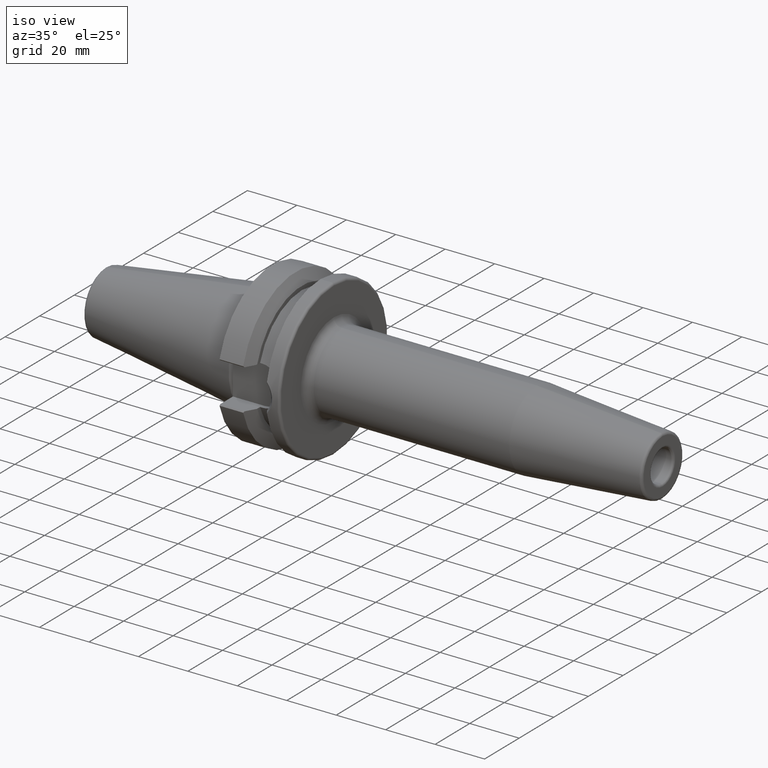
[diagram: clean part render]
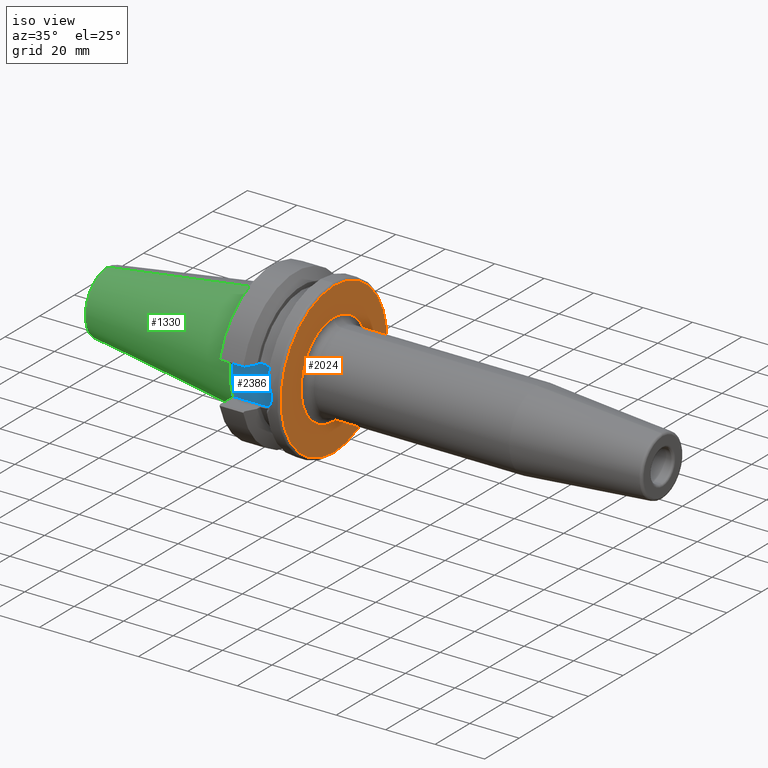
[diagram: same view with three faces highlighted in distinct colors, each labeled with its STEP entity id]
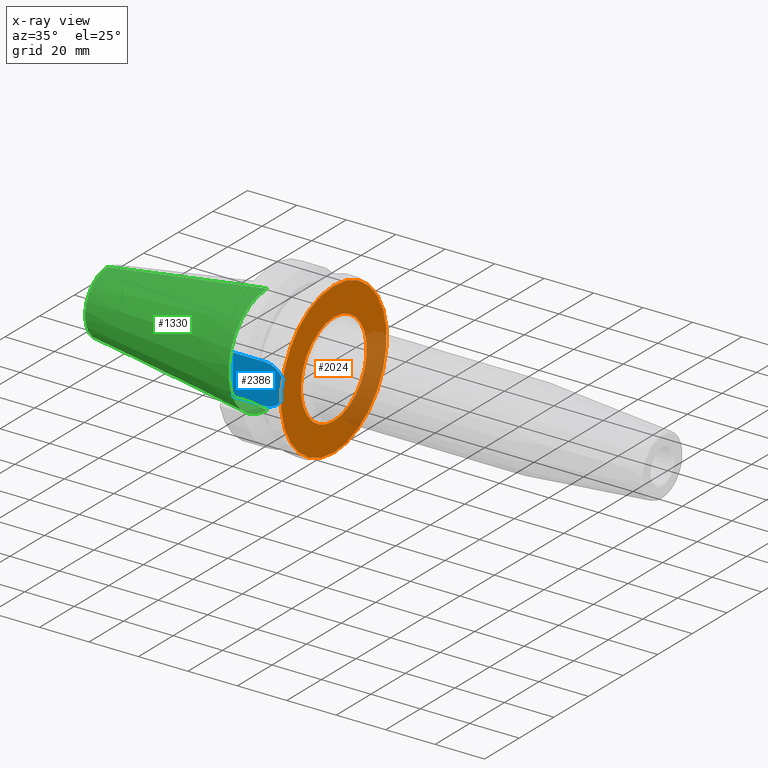
[diagram: x-ray of the same camera — body ghosted, the three highlighted faces saturated]
A machine part, iso view with three faces highlighted in distinct colors.
The next image is the same camera in x-ray (body ghosted, the three faces saturated) — at least one of them is partly hidden behind the body in this view.
Their STEP definitions:

[orange] entity #2024 — the highlighted planar face has unit normal (-1, 0, 0).
#491=CARTESIAN_POINT('',(2.7E1,0.E0,0.E0));
#492=DIRECTION('',(-1.E0,0.E0,0.E0));
#493=DIRECTION('',(0.E0,0.E0,-1.E0));
#494=AXIS2_PLACEMENT_3D('',#491,#492,#493);
#496=CARTESIAN_POINT('',(2.7E1,0.E0,0.E0));
#497=DIRECTION('',(-1.E0,0.E0,0.E0));
#498=DIRECTION('',(0.E0,0.E0,1.E0));
#499=AXIS2_PLACEMENT_3D('',#496,#497,#498);
#501=CARTESIAN_POINT('',(2.7E1,0.E0,0.E0));
#502=DIRECTION('',(1.E0,0.E0,0.E0));
#503=DIRECTION('',(0.E0,0.E0,-1.E0));
#504=AXIS2_PLACEMENT_3D('',#501,#502,#503);
#506=CARTESIAN_POINT('',(2.7E1,0.E0,0.E0));
#507=DIRECTION('',(1.E0,0.E0,0.E0));
#508=DIRECTION('',(0.E0,0.E0,1.E0));
#509=AXIS2_PLACEMENT_3D('',#506,#507,#508);
#1066=CARTESIAN_POINT('',(2.7E1,0.E0,-3.05E1));
#1067=CARTESIAN_POINT('',(2.7E1,0.E0,3.05E1));
#1068=VERTEX_POINT('',#1066);
#1069=VERTEX_POINT('',#1067);
#1265=CARTESIAN_POINT('',(2.7E1,0.E0,-1.9E1));
#1266=CARTESIAN_POINT('',(2.7E1,0.E0,1.9E1));
#1267=VERTEX_POINT('',#1265);
#1268=VERTEX_POINT('',#1266);
#2008=CARTESIAN_POINT('',(2.7E1,0.E0,0.E0));
#2009=DIRECTION('',(-1.E0,0.E0,0.E0));
#2010=DIRECTION('',(0.E0,0.E0,-1.E0));
#2011=AXIS2_PLACEMENT_3D('',#2008,#2009,#2010);
#2012=PLANE('',#2011);
#2014=ORIENTED_EDGE('',*,*,#2013,.T.);
#2016=ORIENTED_EDGE('',*,*,#2015,.T.);
#2017=EDGE_LOOP('',(#2014,#2016));
#2018=FACE_OUTER_BOUND('',#2017,.F.);
#2020=ORIENTED_EDGE('',*,*,#2019,.T.);
#2021=ORIENTED_EDGE('',*,*,#1998,.T.);
#2022=EDGE_LOOP('',(#2020,#2021));
#2023=FACE_BOUND('',#2022,.F.);
#2024=ADVANCED_FACE('',(#2018,#2023),#2012,.F.);
#495=CIRCLE('',#494,3.05E1);
#500=CIRCLE('',#499,3.05E1);
#505=CIRCLE('',#504,1.9E1);
#510=CIRCLE('',#509,1.9E1);
#1998=EDGE_CURVE('',#1268,#1267,#510,.T.);
#2013=EDGE_CURVE('',#1068,#1069,#495,.T.);
#2015=EDGE_CURVE('',#1069,#1068,#500,.T.);
#2019=EDGE_CURVE('',#1267,#1268,#505,.T.);

[blue] entity #2386 — the highlighted planar face has unit normal (0, 1, 0).
#856=CARTESIAN_POINT('',(1.495E1,-2.26E1,0.E0));
#857=DIRECTION('',(0.E0,1.E0,0.E0));
#858=DIRECTION('',(0.E0,0.E0,1.E0));
#859=AXIS2_PLACEMENT_3D('',#856,#857,#858);
#861=DIRECTION('',(-1.E0,0.E0,0.E0));
#862=VECTOR('',#861,1.295E1);
#863=CARTESIAN_POINT('',(1.495E1,-2.26E1,-8.05E0));
#864=LINE('',#863,#862);
#865=DIRECTION('',(1.E0,0.E0,0.E0));
#866=VECTOR('',#865,1.295E1);
#867=CARTESIAN_POINT('',(2.E0,-2.26E1,8.05E0));
#868=LINE('',#867,#866);
#879=DIRECTION('',(0.E0,0.E0,-1.E0));
#880=VECTOR('',#879,1.61E1);
#881=CARTESIAN_POINT('',(2.E0,-2.26E1,8.05E0));
#882=LINE('',#881,#880);
#1166=CARTESIAN_POINT('',(2.E0,-2.26E1,8.05E0));
#1167=CARTESIAN_POINT('',(2.E0,-2.26E1,-8.05E0));
#1168=VERTEX_POINT('',#1166);
#1169=VERTEX_POINT('',#1167);
#1193=CARTESIAN_POINT('',(1.495E1,-2.26E1,-8.05E0));
#1195=VERTEX_POINT('',#1193);
#1197=CARTESIAN_POINT('',(1.495E1,-2.26E1,8.05E0));
#1198=VERTEX_POINT('',#1197);
#2374=CARTESIAN_POINT('',(0.E0,-2.26E1,0.E0));
#2375=DIRECTION('',(0.E0,1.E0,0.E0));
#2376=DIRECTION('',(1.E0,0.E0,0.E0));
#2377=AXIS2_PLACEMENT_3D('',#2374,#2375,#2376);
#2378=PLANE('',#2377);
#2379=ORIENTED_EDGE('',*,*,#2121,.T.);
#2380=ORIENTED_EDGE('',*,*,#2155,.T.);
#2382=ORIENTED_EDGE('',*,*,#2381,.F.);
#2383=ORIENTED_EDGE('',*,*,#2361,.T.);
#2384=EDGE_LOOP('',(#2379,#2380,#2382,#2383));
#2385=FACE_OUTER_BOUND('',#2384,.F.);
#2386=ADVANCED_FACE('',(#2385),#2378,.F.);
#860=CIRCLE('',#859,8.05E0);
#2121=EDGE_CURVE('',#1198,#1195,#860,.T.);
#2155=EDGE_CURVE('',#1195,#1169,#864,.T.);
#2361=EDGE_CURVE('',#1168,#1198,#868,.T.);
#2381=EDGE_CURVE('',#1168,#1169,#882,.T.);

[green] entity #1330 — the highlighted conical surface has half-angle 8.297 deg.
#20=CARTESIAN_POINT('',(4.547473508865E-13,0.E0,0.E0));
#21=DIRECTION('',(1.E0,0.E0,0.E0));
#22=DIRECTION('',(0.E0,0.E0,1.E0));
#23=AXIS2_PLACEMENT_3D('',#20,#21,#22);
#25=DIRECTION('',(-9.895329824990E-1,-2.390662347400E-10,1.443068832268E-1));
#26=VECTOR('',#25,6.522703944722E1);
#27=CARTESIAN_POINT('',(5.606857200746E-10,1.565092715213E-8,
-2.222499999985E1));
#28=LINE('',#27,#26);
#29=CARTESIAN_POINT('',(-6.454430688323E1,0.E0,0.E0));
#30=DIRECTION('',(-1.E0,0.E0,0.E0));
#31=DIRECTION('',(0.E0,0.E0,-1.E0));
#32=AXIS2_PLACEMENT_3D('',#29,#30,#31);
#34=DIRECTION('',(-9.895329824990E-1,2.390660335631E-10,-1.443068832268E-1));
#35=VECTOR('',#34,6.522703944722E1);
#36=CARTESIAN_POINT('',(5.606857200746E-10,-1.565091853005E-8,
2.222499999985E1));
#37=LINE('',#36,#35);
#1094=CARTESIAN_POINT('',(-6.454430688323E1,0.E0,1.281228923511E1));
#1095=CARTESIAN_POINT('',(-6.454430688323E1,0.E0,-1.281228923511E1));
#1096=VERTEX_POINT('',#1094);
#1097=VERTEX_POINT('',#1095);
#1098=CARTESIAN_POINT('',(4.547473508865E-13,0.E0,2.2225E1));
#1099=CARTESIAN_POINT('',(4.547473508865E-13,0.E0,-2.2225E1));
#1100=VERTEX_POINT('',#1098);
#1101=VERTEX_POINT('',#1099);
#1318=CARTESIAN_POINT('',(-3.227215344161E1,0.E0,0.E0));
#1319=DIRECTION('',(1.E0,0.E0,0.E0));
#1320=DIRECTION('',(0.E0,0.E0,1.E0));
#1321=AXIS2_PLACEMENT_3D('',#1318,#1319,#1320);
#1322=CONICAL_SURFACE('',#1321,1.751864461755E1,8.2971444E0);
#1323=ORIENTED_EDGE('',*,*,#1309,.T.);
#1324=ORIENTED_EDGE('',*,*,#1284,.T.);
#1326=ORIENTED_EDGE('',*,*,#1325,.T.);
#1327=ORIENTED_EDGE('',*,*,#1280,.F.);
#1328=EDGE_LOOP('',(#1323,#1324,#1326,#1327));
#1329=FACE_OUTER_BOUND('',#1328,.F.);
#1330=ADVANCED_FACE('',(#1329),#1322,.T.);
#24=CIRCLE('',#23,2.2225E1);
#33=CIRCLE('',#32,1.281228923511E1);
#1280=EDGE_CURVE('',#1100,#1096,#37,.T.);
#1284=EDGE_CURVE('',#1101,#1097,#28,.T.);
#1309=EDGE_CURVE('',#1100,#1101,#24,.T.);
#1325=EDGE_CURVE('',#1097,#1096,#33,.T.);